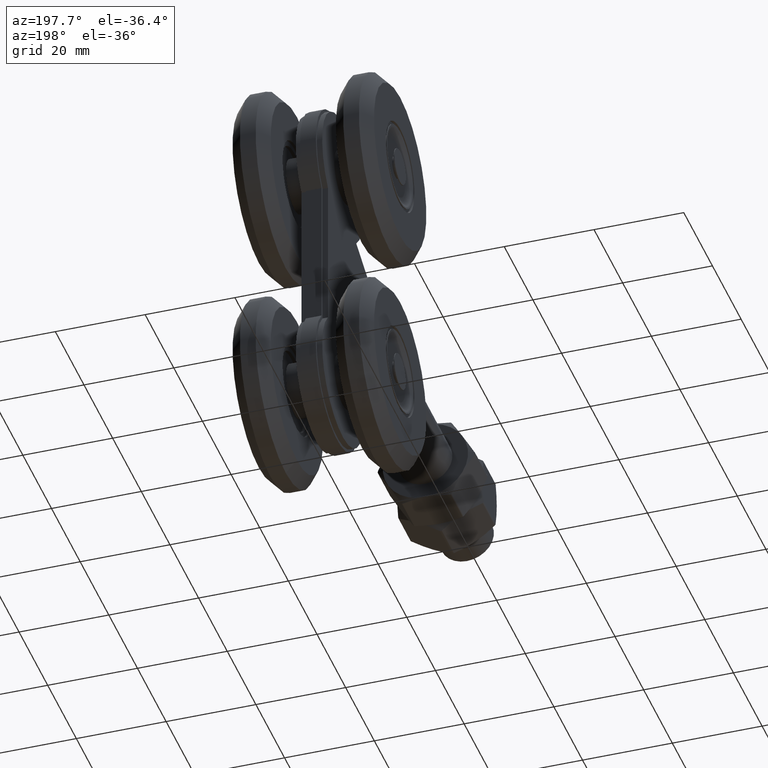
[diagram: clean part render]
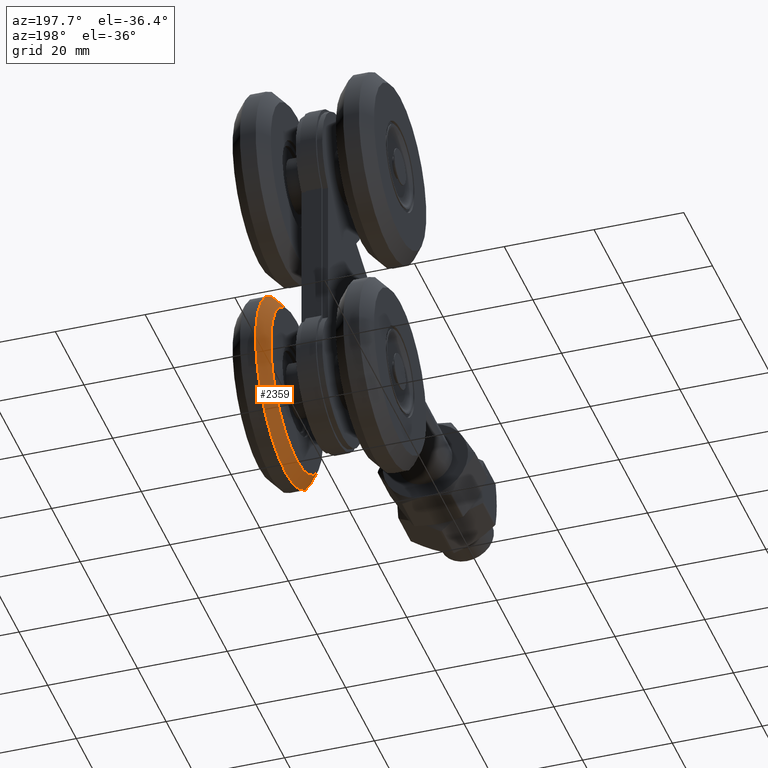
[diagram: same view with one face highlighted and labeled with its STEP entity id]
A machine part, auxiliary view. The second image highlights one B-rep face of the part: STEP entity #2359.
In plain terms, the highlighted conical surface has half-angle 47.726 deg.
Its self-contained STEP definition (entity closure, byte-faithful):
#204 = CARTESIAN_POINT ( 'NONE',  ( 7.249999999999992895, 34.00000000000000000, -45.25000000000001421 ) ) ;
#325 = VERTEX_POINT ( 'NONE', #18165 ) ;
#396 = EDGE_LOOP ( 'NONE', ( #12840 ) ) ;
#1360 = CARTESIAN_POINT ( 'NONE',  ( 7.249999999999992895, 34.00000000000000000, -27.00000000000000000 ) ) ;
#1864 = FACE_OUTER_BOUND ( 'NONE', #11126, .T. ) ;
#2315 = AXIS2_PLACEMENT_3D ( 'NONE', #1360, #7685, #9122 ) ;
#2359 = ADVANCED_FACE ( 'NONE', ( #13056, #1864 ), #7095, .T. ) ;
#4505 = AXIS2_PLACEMENT_3D ( 'NONE', #13976, #17247, #15439 ) ;
#6026 = EDGE_CURVE ( 'NONE', #325, #325, #17261, .T. ) ;
#7095 = CONICAL_SURFACE ( 'NONE', #16132, 21.00000000000000355, 0.8329812666744308425 ) ;
#7685 = DIRECTION ( 'NONE',  ( 1.000000000000000000, 0.000000000000000000, -0.000000000000000000 ) ) ;
#8395 = VERTEX_POINT ( 'NONE', #204 ) ;
#9122 = DIRECTION ( 'NONE',  ( 0.000000000000000000, 0.000000000000000000, -1.000000000000000000 ) ) ;
#9580 = DIRECTION ( 'NONE',  ( 0.000000000000000000, 0.000000000000000000, 1.000000000000000000 ) ) ;
#11126 = EDGE_LOOP ( 'NONE', ( #17544 ) ) ;
#12840 = ORIENTED_EDGE ( 'NONE', *, *, #16525, .T. ) ;
#13056 = FACE_BOUND ( 'NONE', #396, .T. ) ;
#13976 = CARTESIAN_POINT ( 'NONE',  ( 9.749999999999992895, 34.00000000000000000, -27.00000000000000000 ) ) ;
#15439 = DIRECTION ( 'NONE',  ( 0.000000000000000000, 0.000000000000000000, -1.000000000000000000 ) ) ;
#15576 = CARTESIAN_POINT ( 'NONE',  ( 9.749999999999992895, 34.00000000000000000, -27.00000000000000000 ) ) ;
#16132 = AXIS2_PLACEMENT_3D ( 'NONE', #15576, #17099, #9580 ) ;
#16525 = EDGE_CURVE ( 'NONE', #8395, #8395, #19614, .T. ) ;
#17099 = DIRECTION ( 'NONE',  ( 1.000000000000000000, 0.000000000000000000, 0.000000000000000000 ) ) ;
#17247 = DIRECTION ( 'NONE',  ( 1.000000000000000000, 0.000000000000000000, -0.000000000000000000 ) ) ;
#17261 = CIRCLE ( 'NONE', #4505, 21.00000000000000000 ) ;
#17544 = ORIENTED_EDGE ( 'NONE', *, *, #6026, .F. ) ;
#18165 = CARTESIAN_POINT ( 'NONE',  ( 9.749999999999992895, 34.00000000000000000, -48.00000000000000000 ) ) ;
#19614 = CIRCLE ( 'NONE', #2315, 18.25000000000001421 ) ;